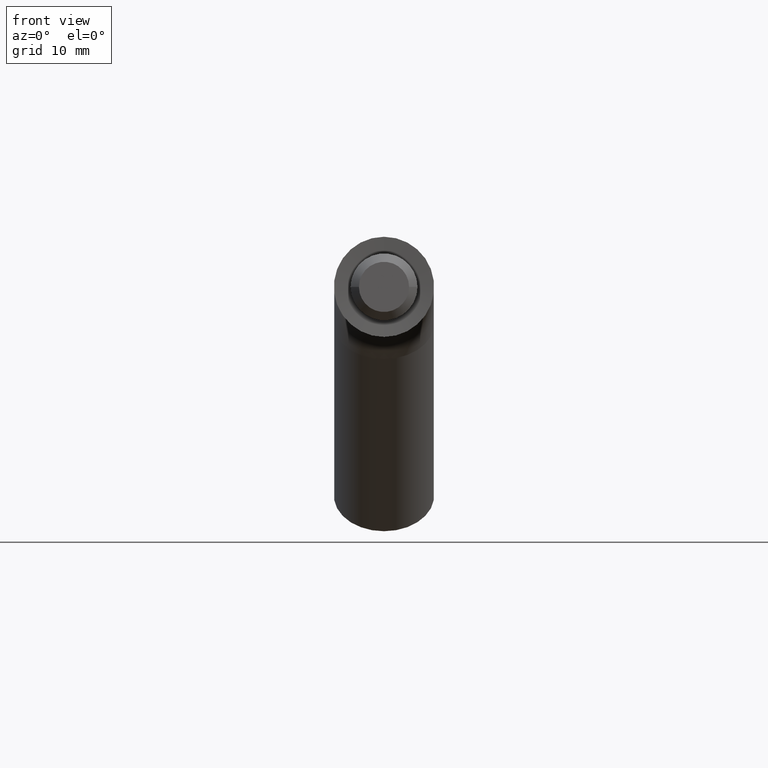
[diagram: clean part render]
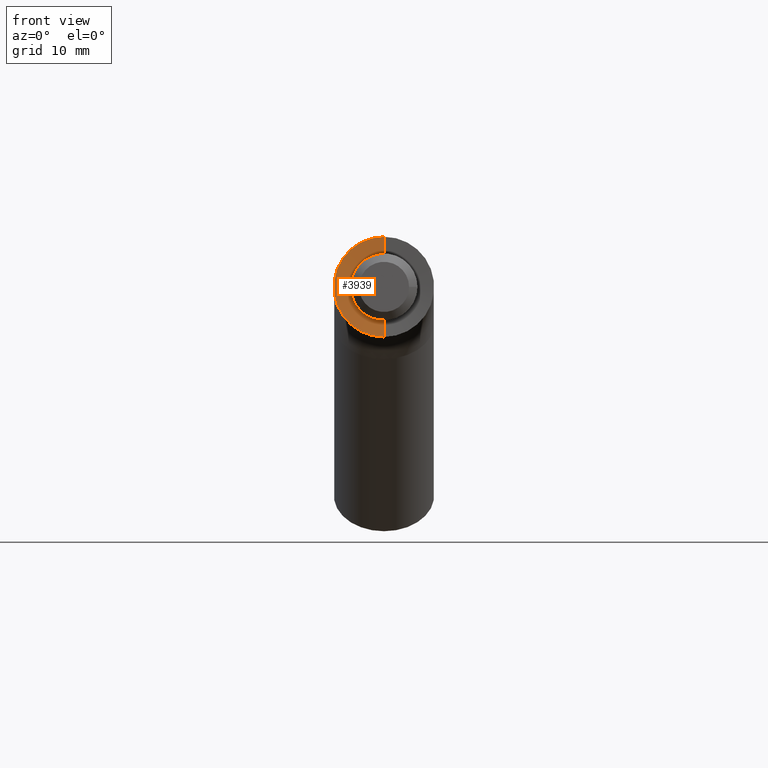
[diagram: same view with one face highlighted and labeled with its STEP entity id]
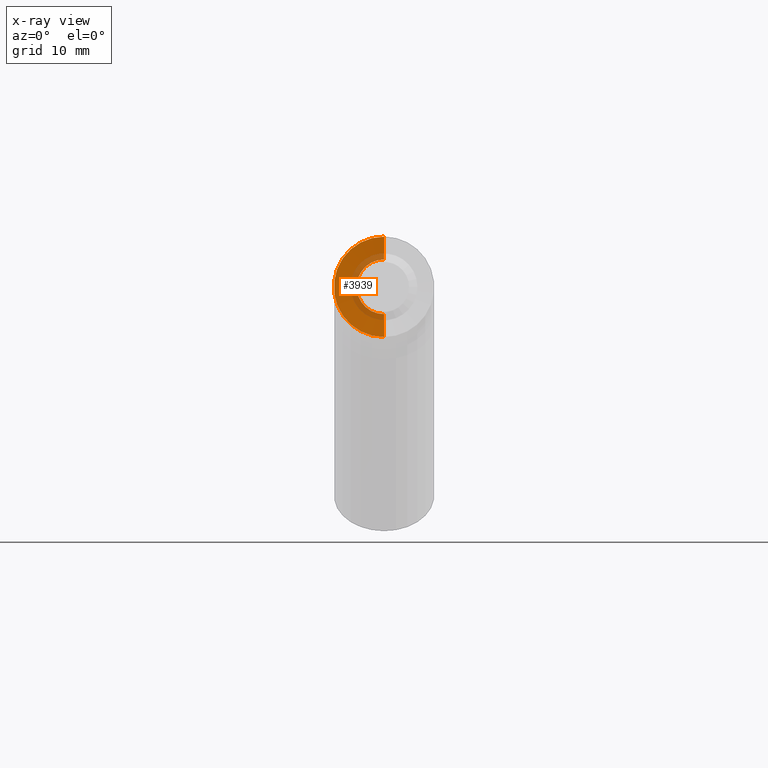
[diagram: x-ray of the same camera — body ghosted, the highlighted face saturated]
A machine part, front view. The second image highlights one B-rep face of the part: STEP entity #3939.
The next image is the same camera in x-ray: the body ghosted, the highlighted face saturated — about 21% of this face is hidden behind the body in this view.
In plain terms, the highlighted conical surface has half-angle 85 deg.
Its self-contained STEP definition (entity closure, byte-faithful):
#157 = EDGE_CURVE ( 'NONE', #4165, #1983, #11829, .T. ) ;
#382 = VERTEX_POINT ( 'NONE', #1880 ) ;
#985 = VECTOR ( 'NONE', #10416, 1000.000000000000000 ) ;
#1263 = ORIENTED_EDGE ( 'NONE', *, *, #157, .T. ) ;
#1396 = AXIS2_PLACEMENT_3D ( 'NONE', #8625, #4131, #14240 ) ;
#1567 = AXIS2_PLACEMENT_3D ( 'NONE', #9324, #13684, #3843 ) ;
#1880 = CARTESIAN_POINT ( 'NONE',  ( 0.0000000000000000000, 0.2386875398333668200, -3.271788935686912800 ) ) ;
#1983 = VERTEX_POINT ( 'NONE', #2439 ) ;
#2439 = CARTESIAN_POINT ( 'NONE',  ( 0.0000000000000000000, 0.0000000000000000000, -6.000000000000000000 ) ) ;
#3064 = CARTESIAN_POINT ( 'NONE',  ( 5.677333321229411000E-016, 0.2386875398333668200, 3.271788935686912800 ) ) ;
#3093 = CARTESIAN_POINT ( 'NONE',  ( 0.0000000000000000000, 0.0000000000000000000, -6.000000000000000000 ) ) ;
#3843 = DIRECTION ( 'NONE',  ( 0.0000000000000000000, 0.0000000000000000000, -1.000000000000000000 ) ) ;
#3939 = ADVANCED_FACE ( 'NONE', ( #5778 ), #5600, .F. ) ;
#4131 = DIRECTION ( 'NONE',  ( 0.0000000000000000000, 1.000000000000000000, 0.0000000000000000000 ) ) ;
#4165 = VERTEX_POINT ( 'NONE', #8877 ) ;
#4696 = ORIENTED_EDGE ( 'NONE', *, *, #6832, .T. ) ;
#4845 = CIRCLE ( 'NONE', #1396, 3.271788935686912800 ) ;
#5181 = AXIS2_PLACEMENT_3D ( 'NONE', #13359, #14293, #12046 ) ;
#5515 = VERTEX_POINT ( 'NONE', #3064 ) ;
#5600 = CONICAL_SURFACE ( 'NONE', #1567, 6.000000000000000000, 1.483529864195187100 ) ;
#5778 = FACE_OUTER_BOUND ( 'NONE', #12165, .T. ) ;
#6354 = LINE ( 'NONE', #11475, #985 ) ;
#6832 = EDGE_CURVE ( 'NONE', #382, #5515, #4845, .T. ) ;
#6861 = EDGE_CURVE ( 'NONE', #382, #1983, #9684, .T. ) ;
#8587 = DIRECTION ( 'NONE',  ( 0.0000000000000000000, -0.08715574274765128200, -0.9961946980917461000 ) ) ;
#8625 = CARTESIAN_POINT ( 'NONE',  ( 0.0000000000000000000, 0.2386875398333668200, 0.0000000000000000000 ) ) ;
#8810 = EDGE_CURVE ( 'NONE', #5515, #4165, #6354, .T. ) ;
#8877 = CARTESIAN_POINT ( 'NONE',  ( 7.347880794884120700E-016, 0.0000000000000000000, 6.000000000000000000 ) ) ;
#9324 = CARTESIAN_POINT ( 'NONE',  ( 0.0000000000000000000, 0.0000000000000000000, 0.0000000000000000000 ) ) ;
#9684 = LINE ( 'NONE', #3093, #10354 ) ;
#9833 = ORIENTED_EDGE ( 'NONE', *, *, #8810, .T. ) ;
#10354 = VECTOR ( 'NONE', #8587, 1000.000000000000000 ) ;
#10416 = DIRECTION ( 'NONE',  ( 1.219986648345620700E-016, -0.08715574274765128200, 0.9961946980917461000 ) ) ;
#11475 = CARTESIAN_POINT ( 'NONE',  ( 7.347880794884119700E-016, 0.0000000000000000000, 6.000000000000000000 ) ) ;
#11829 = CIRCLE ( 'NONE', #5181, 6.000000000000000000 ) ;
#12046 = DIRECTION ( 'NONE',  ( 0.0000000000000000000, 0.0000000000000000000, -1.000000000000000000 ) ) ;
#12165 = EDGE_LOOP ( 'NONE', ( #4696, #9833, #1263, #12370 ) ) ;
#12370 = ORIENTED_EDGE ( 'NONE', *, *, #6861, .F. ) ;
#13359 = CARTESIAN_POINT ( 'NONE',  ( 0.0000000000000000000, 0.0000000000000000000, 0.0000000000000000000 ) ) ;
#13684 = DIRECTION ( 'NONE',  ( -0.0000000000000000000, -1.000000000000000000, -0.0000000000000000000 ) ) ;
#14240 = DIRECTION ( 'NONE',  ( 0.0000000000000000000, 0.0000000000000000000, -1.000000000000000000 ) ) ;
#14293 = DIRECTION ( 'NONE',  ( -0.0000000000000000000, -1.000000000000000000, -0.0000000000000000000 ) ) ;